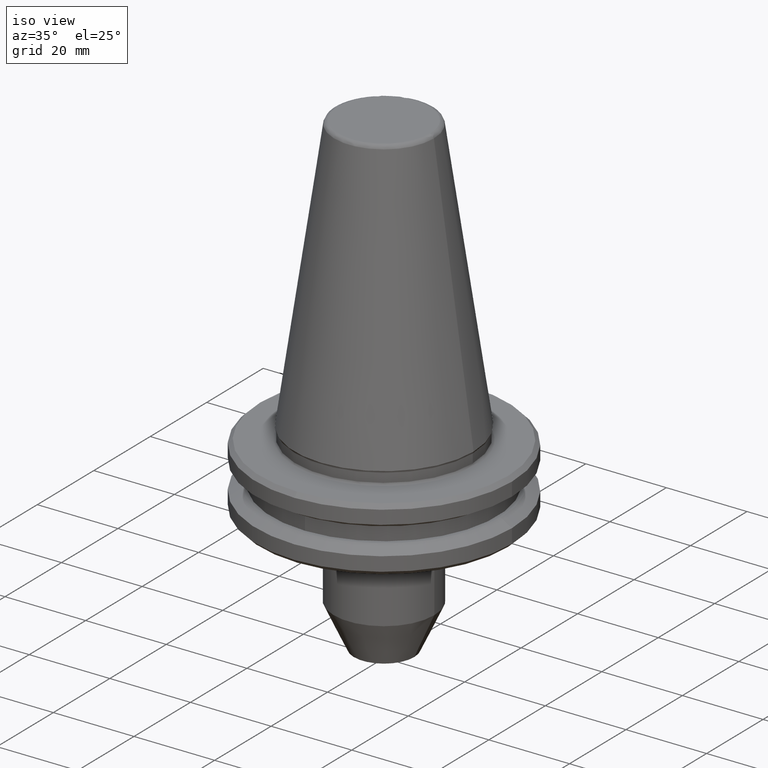
[diagram: clean part render]
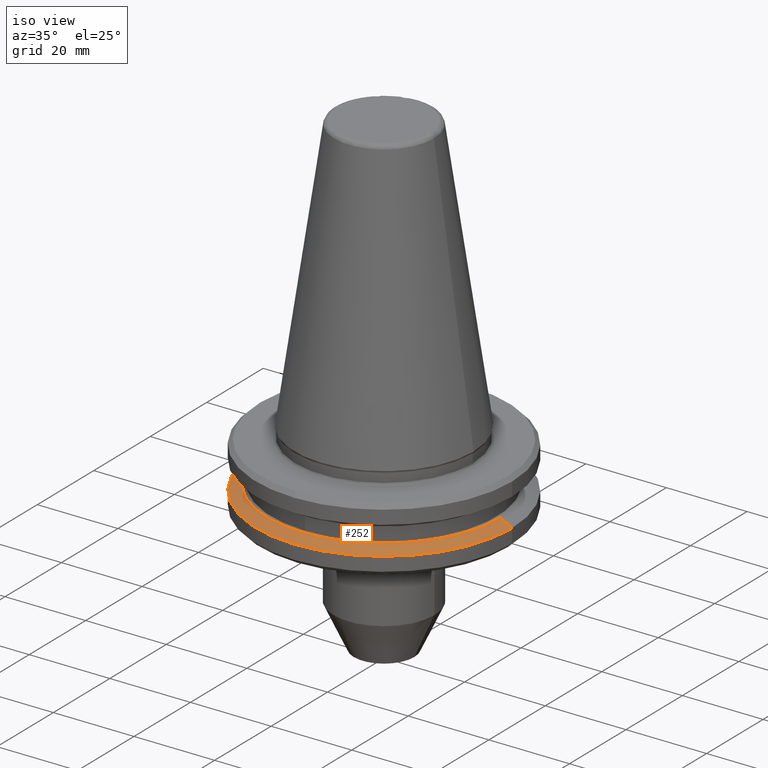
[diagram: same view with one face highlighted and labeled with its STEP entity id]
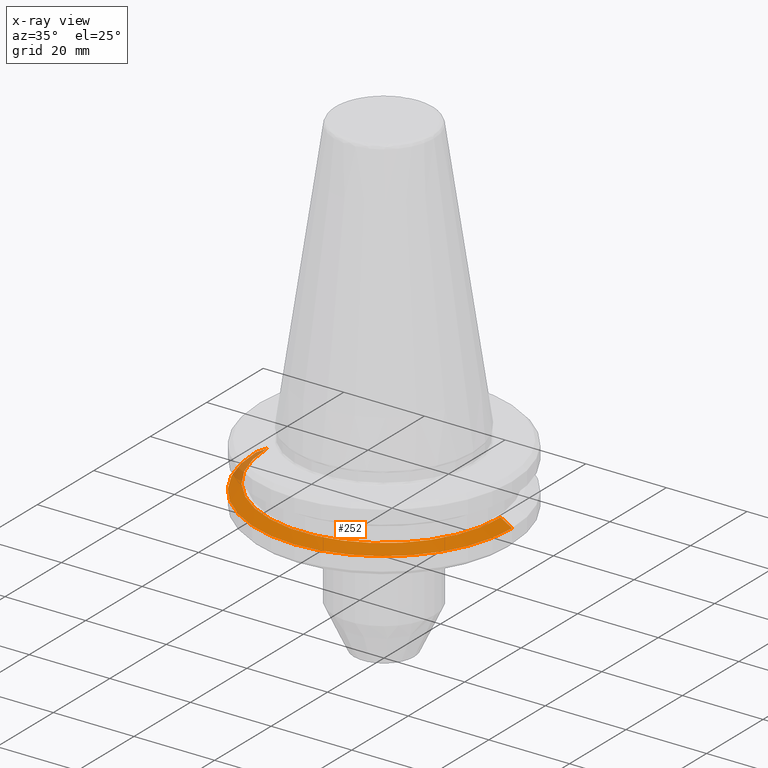
[diagram: x-ray of the same camera — body ghosted, the highlighted face saturated]
A machine part, iso view. The second image highlights one B-rep face of the part: STEP entity #252.
The next image is the same camera in x-ray: the body ghosted, the highlighted face saturated — about 5% of this face is hidden behind the body in this view.
In plain terms, the highlighted conical surface has half-angle 60 deg.
Its self-contained STEP definition (entity closure, byte-faithful):
#17 = VERTEX_POINT ( 'NONE', #800 ) ;
#64 = VERTEX_POINT ( 'NONE', #1146 ) ;
#84 = ORIENTED_EDGE ( 'NONE', *, *, #843, .F. ) ;
#99 = ORIENTED_EDGE ( 'NONE', *, *, #345, .T. ) ;
#156 = VERTEX_POINT ( 'NONE', #526 ) ;
#178 = AXIS2_PLACEMENT_3D ( 'NONE', #647, #645, #640 ) ;
#252 = ADVANCED_FACE ( 'NONE', ( #1207 ), #1167, .T. ) ;
#312 = EDGE_CURVE ( 'NONE', #156, #64, #1004, .T. ) ;
#345 = EDGE_CURVE ( 'NONE', #64, #732, #1222, .T. ) ;
#373 = CARTESIAN_POINT ( 'NONE',  ( -31.75000000012251200, 0.0000000000000000000, -14.62183664207073300 ) ) ;
#442 = DIRECTION ( 'NONE',  ( -1.000000000000000000, 0.0000000000000000000, 0.0000000000000000000 ) ) ;
#468 = AXIS2_PLACEMENT_3D ( 'NONE', #507, #587, #672 ) ;
#472 = CARTESIAN_POINT ( 'NONE',  ( 31.75000000012251200, 3.888253587307849800E-015, -14.62183664207073300 ) ) ;
#478 = DIRECTION ( 'NONE',  ( 0.8660254038213651700, 1.060575238770128900E-016, -0.4999999999360413800 ) ) ;
#507 = CARTESIAN_POINT ( 'NONE',  ( 0.0000000000000000000, 0.0000000000000000000, -14.62183664207073300 ) ) ;
#526 = CARTESIAN_POINT ( 'NONE',  ( 28.94089653399999300, 3.716245608907510900E-015, -13.00000000000000000 ) ) ;
#549 = VECTOR ( 'NONE', #478, 1000.000000000000000 ) ;
#587 = DIRECTION ( 'NONE',  ( 0.0000000000000000000, 0.0000000000000000000, -1.000000000000000000 ) ) ;
#640 = DIRECTION ( 'NONE',  ( 1.000000000000000000, 0.0000000000000000000, 0.0000000000000000000 ) ) ;
#643 = ORIENTED_EDGE ( 'NONE', *, *, #1205, .F. ) ;
#645 = DIRECTION ( 'NONE',  ( -0.0000000000000000000, -0.0000000000000000000, -1.000000000000000000 ) ) ;
#647 = CARTESIAN_POINT ( 'NONE',  ( 0.0000000000000000000, 0.0000000000000000000, -14.62183664194333400 ) ) ;
#672 = DIRECTION ( 'NONE',  ( -1.000000000000000000, 0.0000000000000000000, 0.0000000000000000000 ) ) ;
#686 = AXIS2_PLACEMENT_3D ( 'NONE', #1182, #1035, #442 ) ;
#711 = CARTESIAN_POINT ( 'NONE',  ( -31.75000000000000000, 3.888253587292846500E-015, -14.62183664194333400 ) ) ;
#732 = VERTEX_POINT ( 'NONE', #711 ) ;
#780 = ORIENTED_EDGE ( 'NONE', *, *, #312, .T. ) ;
#800 = CARTESIAN_POINT ( 'NONE',  ( 31.75000000000000000, 0.0000000000000000000, -14.62183664194333400 ) ) ;
#843 = EDGE_CURVE ( 'NONE', #17, #732, #1352, .T. ) ;
#887 = DIRECTION ( 'NONE',  ( -0.8660254038213651700, 0.0000000000000000000, -0.4999999999360413800 ) ) ;
#999 = EDGE_LOOP ( 'NONE', ( #643, #780, #99, #84 ) ) ;
#1004 = CIRCLE ( 'NONE', #686, 28.94089653399999300 ) ;
#1035 = DIRECTION ( 'NONE',  ( 0.0000000000000000000, 0.0000000000000000000, -1.000000000000000000 ) ) ;
#1146 = CARTESIAN_POINT ( 'NONE',  ( -28.94089653399999300, 0.0000000000000000000, -13.00000000000000000 ) ) ;
#1167 = CONICAL_SURFACE ( 'NONE', #468, 31.75000000012251200, 1.047197551270450800 ) ;
#1182 = CARTESIAN_POINT ( 'NONE',  ( 0.0000000000000000000, 0.0000000000000000000, -13.00000000000000000 ) ) ;
#1205 = EDGE_CURVE ( 'NONE', #156, #17, #1209, .T. ) ;
#1207 = FACE_OUTER_BOUND ( 'NONE', #999, .T. ) ;
#1209 = LINE ( 'NONE', #472, #549 ) ;
#1222 = LINE ( 'NONE', #373, #1253 ) ;
#1253 = VECTOR ( 'NONE', #887, 1000.000000000000000 ) ;
#1352 = CIRCLE ( 'NONE', #178, 31.75000000000000000 ) ;